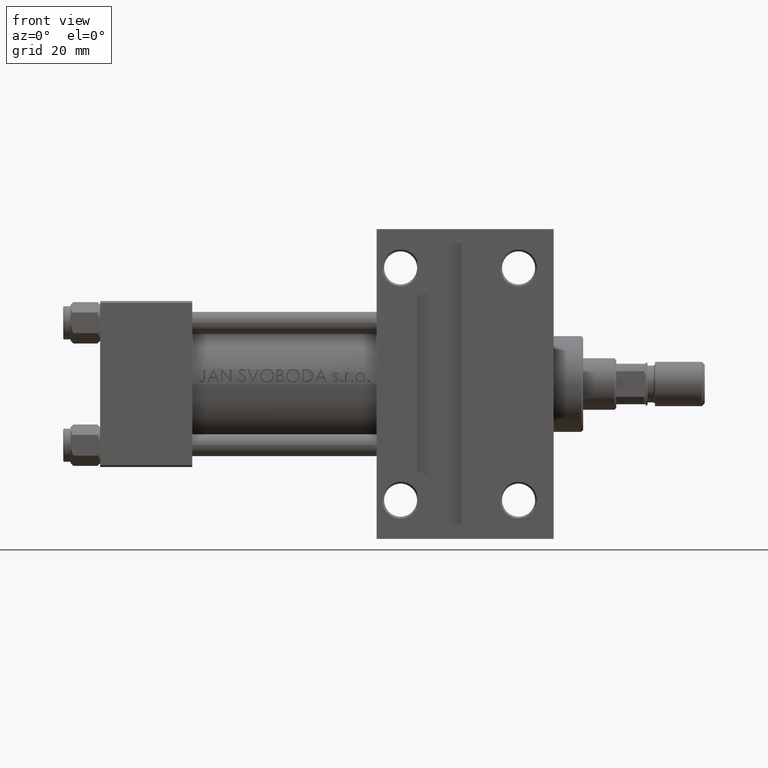
[diagram: clean part render]
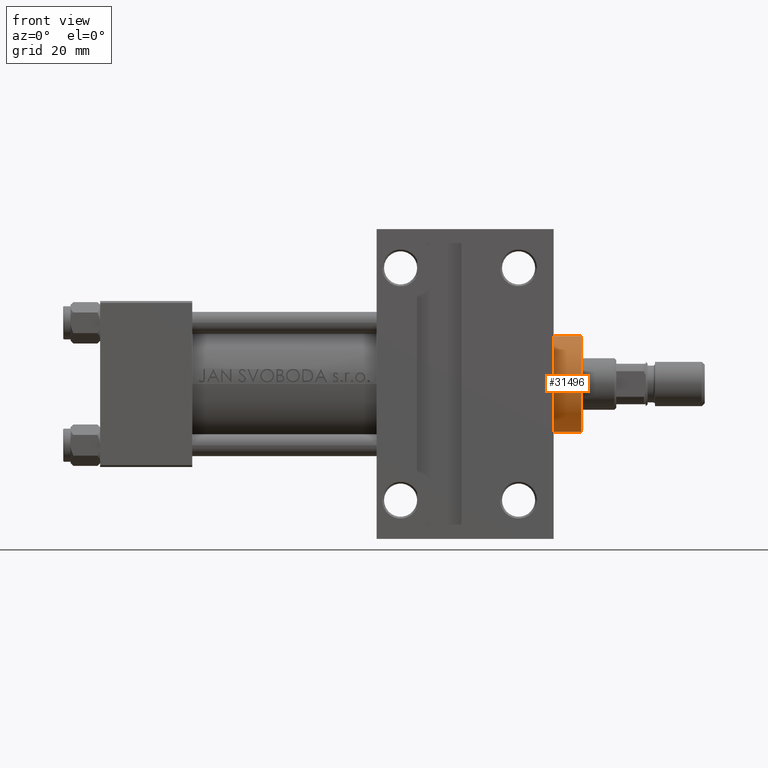
[diagram: same view with one face highlighted and labeled with its STEP entity id]
A machine part, front view. The second image highlights one B-rep face of the part: STEP entity #31496.
In plain terms, the highlighted cylindrical surface (partial cylindrical patch) has radius 13 mm, axis along (-1, 0, 0).
Its self-contained STEP definition (entity closure, byte-faithful):
#806 = VECTOR ( 'NONE', #27417, 1000.000000000000000 ) ;
#1386 = VERTEX_POINT ( 'NONE', #16654 ) ;
#3661 = DIRECTION ( 'NONE',  ( -0.000000000000000000, -0.000000000000000000, -1.000000000000000000 ) ) ;
#4114 = CARTESIAN_POINT ( 'NONE',  ( 0.000000000000000000, 0.000000000000000000, 36.69999999999999574 ) ) ;
#5059 = ORIENTED_EDGE ( 'NONE', *, *, #22946, .T. ) ;
#6556 = CARTESIAN_POINT ( 'NONE',  ( 0.000000000000000000, 0.000000000000000000, 36.20000000000000995 ) ) ;
#11461 = LINE ( 'NONE', #45069, #14281 ) ;
#12148 = DIRECTION ( 'NONE',  ( -1.000000000000000000, 0.000000000000000000, 0.000000000000000000 ) ) ;
#14281 = VECTOR ( 'NONE', #3661, 1000.000000000000000 ) ;
#16043 = DIRECTION ( 'NONE',  ( -0.000000000000000000, -0.000000000000000000, -1.000000000000000000 ) ) ;
#16482 = VERTEX_POINT ( 'NONE', #43307 ) ;
#16654 = CARTESIAN_POINT ( 'NONE',  ( 13.00000000000000178, 1.592040838891559293E-15, 36.20000000000000995 ) ) ;
#16659 = EDGE_LOOP ( 'NONE', ( #5059, #27378, #45562, #43339 ) ) ;
#19959 = CIRCLE ( 'NONE', #26169, 13.00000000000000178 ) ;
#20273 = EDGE_CURVE ( 'NONE', #27729, #43877, #46274, .T. ) ;
#20596 = LINE ( 'NONE', #47301, #806 ) ;
#22946 = EDGE_CURVE ( 'NONE', #16482, #1386, #19959, .T. ) ;
#24724 = AXIS2_PLACEMENT_3D ( 'NONE', #4114, #16043, #12148 ) ;
#25170 = DIRECTION ( 'NONE',  ( 1.000000000000000000, 0.000000000000000000, 0.000000000000000000 ) ) ;
#25259 = AXIS2_PLACEMENT_3D ( 'NONE', #29307, #44165, #25170 ) ;
#25533 = DIRECTION ( 'NONE',  ( 0.000000000000000000, 0.000000000000000000, -1.000000000000000000 ) ) ;
#26169 = AXIS2_PLACEMENT_3D ( 'NONE', #6556, #25533, #32393 ) ;
#27367 = EDGE_CURVE ( 'NONE', #16482, #43877, #11461, .T. ) ;
#27378 = ORIENTED_EDGE ( 'NONE', *, *, #37722, .T. ) ;
#27417 = DIRECTION ( 'NONE',  ( -0.000000000000000000, -0.000000000000000000, -1.000000000000000000 ) ) ;
#27729 = VERTEX_POINT ( 'NONE', #44636 ) ;
#29307 = CARTESIAN_POINT ( 'NONE',  ( 0.000000000000000000, 0.000000000000000000, 28.69999999999999929 ) ) ;
#30661 = FACE_OUTER_BOUND ( 'NONE', #16659, .T. ) ;
#31496 = ADVANCED_FACE ( 'NONE', ( #30661 ), #37501, .T. ) ;
#32393 = DIRECTION ( 'NONE',  ( 1.000000000000000000, 0.000000000000000000, 0.000000000000000000 ) ) ;
#33372 = CARTESIAN_POINT ( 'NONE',  ( -13.00000000000000178, 0.000000000000000000, 28.69999999999999929 ) ) ;
#37501 = CYLINDRICAL_SURFACE ( 'NONE', #24724, 13.00000000000000178 ) ;
#37722 = EDGE_CURVE ( 'NONE', #1386, #27729, #20596, .T. ) ;
#43307 = CARTESIAN_POINT ( 'NONE',  ( -13.00000000000000178, 0.000000000000000000, 36.20000000000000995 ) ) ;
#43339 = ORIENTED_EDGE ( 'NONE', *, *, #27367, .F. ) ;
#43877 = VERTEX_POINT ( 'NONE', #33372 ) ;
#44165 = DIRECTION ( 'NONE',  ( 0.000000000000000000, 0.000000000000000000, 1.000000000000000000 ) ) ;
#44636 = CARTESIAN_POINT ( 'NONE',  ( 13.00000000000000178, 1.592040838891559293E-15, 28.69999999999999929 ) ) ;
#45069 = CARTESIAN_POINT ( 'NONE',  ( -13.00000000000000178, 0.000000000000000000, 36.69999999999999574 ) ) ;
#45562 = ORIENTED_EDGE ( 'NONE', *, *, #20273, .T. ) ;
#46274 = CIRCLE ( 'NONE', #25259, 13.00000000000000178 ) ;
#47301 = CARTESIAN_POINT ( 'NONE',  ( 13.00000000000000178, 1.592040838891559293E-15, 36.69999999999999574 ) ) ;